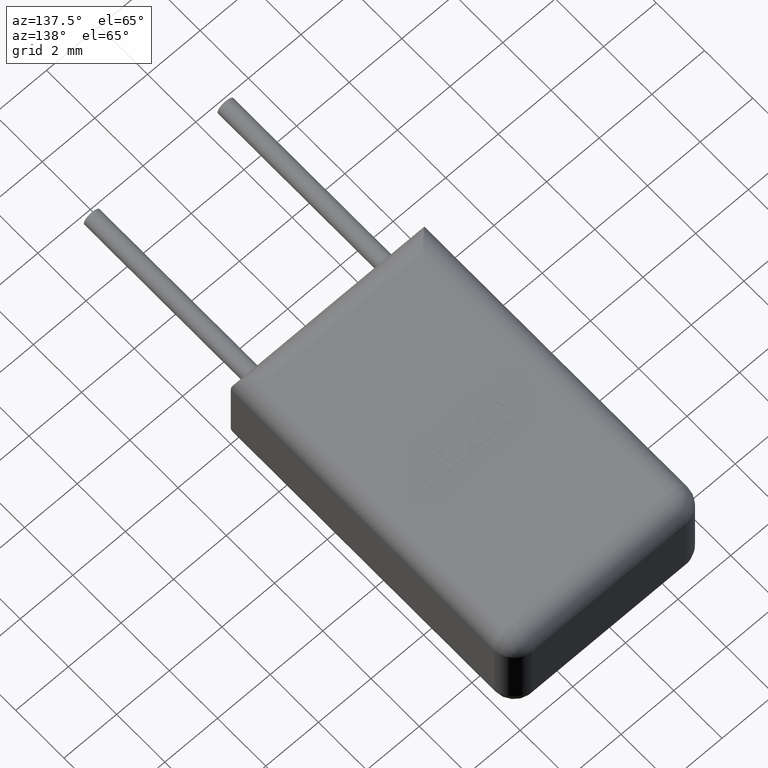
[diagram: clean part render]
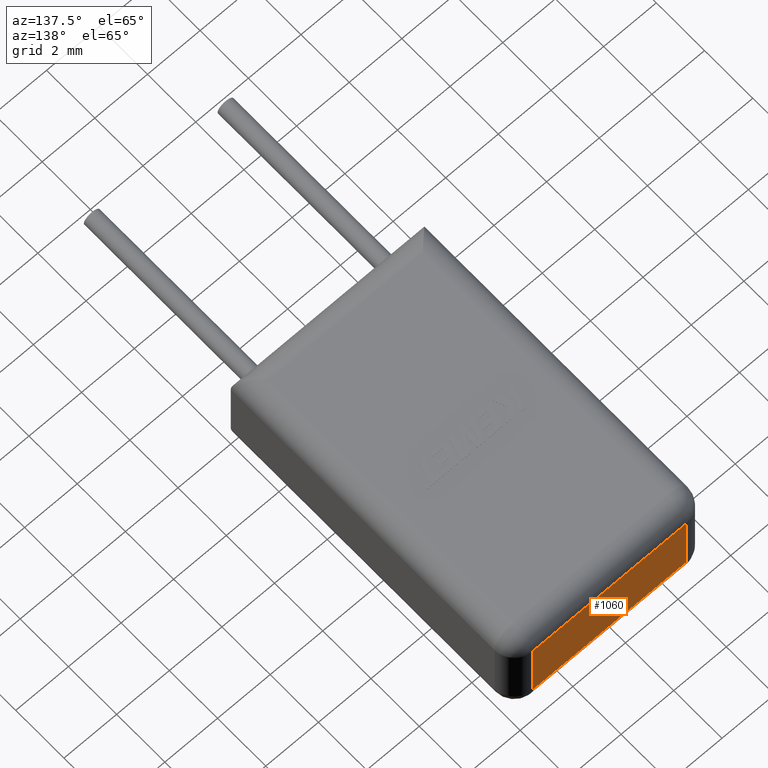
[diagram: same view with one face highlighted and labeled with its STEP entity id]
A machine part, auxiliary view. The second image highlights one B-rep face of the part: STEP entity #1060.
In plain terms, the highlighted planar face has unit normal (0, -1, 0).
Its self-contained STEP definition (entity closure, byte-faithful):
#38 = DIRECTION ( 'NONE',  ( 0.0000000000000000000, -0.0000000000000000000, -1.000000000000000000 ) ) ;
#115 = DIRECTION ( 'NONE',  ( -0.0000000000000000000, -0.0000000000000000000, 1.000000000000000000 ) ) ;
#235 = ORIENTED_EDGE ( 'NONE', *, *, #2814, .T. ) ;
#434 = VECTOR ( 'NONE', #115, 1000.000000000000000 ) ;
#485 = DIRECTION ( 'NONE',  ( 1.000000000000000000, -0.0000000000000000000, -0.0000000000000000000 ) ) ;
#599 = EDGE_LOOP ( 'NONE', ( #755, #3073, #1513, #235 ) ) ;
#755 = ORIENTED_EDGE ( 'NONE', *, *, #1064, .T. ) ;
#981 = CARTESIAN_POINT ( 'NONE',  ( -6.610000000000000300, 11.67999999999999800, 3.320000000000000700 ) ) ;
#1041 = CARTESIAN_POINT ( 'NONE',  ( -7.360000000000000300, 11.67999999999999800, 3.320000000000000700 ) ) ;
#1060 = ADVANCED_FACE ( 'NONE', ( #3355 ), #2122, .F. ) ;
#1064 = EDGE_CURVE ( 'NONE', #2041, #1360, #3570, .T. ) ;
#1203 = DIRECTION ( 'NONE',  ( 0.0000000000000000000, -1.000000000000000000, 0.0000000000000000000 ) ) ;
#1360 = VERTEX_POINT ( 'NONE', #981 ) ;
#1483 = VECTOR ( 'NONE', #2668, 1000.000000000000000 ) ;
#1513 = ORIENTED_EDGE ( 'NONE', *, *, #3135, .T. ) ;
#1526 = CARTESIAN_POINT ( 'NONE',  ( -6.610000000000000300, 11.67999999999999800, 0.7499999999999997800 ) ) ;
#1967 = CARTESIAN_POINT ( 'NONE',  ( -7.360000000000000300, 11.67999999999999800, 0.7499999999999997800 ) ) ;
#2041 = VERTEX_POINT ( 'NONE', #1526 ) ;
#2122 = PLANE ( 'NONE',  #2811 ) ;
#2215 = VECTOR ( 'NONE', #2275, 1000.000000000000000 ) ;
#2241 = EDGE_CURVE ( 'NONE', #1360, #3196, #2454, .T. ) ;
#2253 = LINE ( 'NONE', #2381, #1483 ) ;
#2275 = DIRECTION ( 'NONE',  ( -1.000000000000000000, 0.0000000000000000000, 0.0000000000000000000 ) ) ;
#2381 = CARTESIAN_POINT ( 'NONE',  ( -0.7499999999999997800, 11.67999999999999800, 4.070000000000000300 ) ) ;
#2454 = LINE ( 'NONE', #1041, #3323 ) ;
#2465 = CARTESIAN_POINT ( 'NONE',  ( -0.7499999999999997800, 11.67999999999999800, 0.7499999999999997800 ) ) ;
#2668 = DIRECTION ( 'NONE',  ( 0.0000000000000000000, 0.0000000000000000000, -1.000000000000000000 ) ) ;
#2799 = LINE ( 'NONE', #1967, #2215 ) ;
#2811 = AXIS2_PLACEMENT_3D ( 'NONE', #2919, #1203, #38 ) ;
#2814 = EDGE_CURVE ( 'NONE', #3305, #2041, #2799, .T. ) ;
#2919 = CARTESIAN_POINT ( 'NONE',  ( -7.360000000000000300, 11.67999999999999800, 4.070000000000000300 ) ) ;
#3030 = CARTESIAN_POINT ( 'NONE',  ( -6.610000000000000300, 11.67999999999999800, 4.070000000000000300 ) ) ;
#3073 = ORIENTED_EDGE ( 'NONE', *, *, #2241, .T. ) ;
#3135 = EDGE_CURVE ( 'NONE', #3196, #3305, #2253, .T. ) ;
#3196 = VERTEX_POINT ( 'NONE', #3481 ) ;
#3305 = VERTEX_POINT ( 'NONE', #2465 ) ;
#3323 = VECTOR ( 'NONE', #485, 1000.000000000000000 ) ;
#3355 = FACE_OUTER_BOUND ( 'NONE', #599, .T. ) ;
#3481 = CARTESIAN_POINT ( 'NONE',  ( -0.7499999999999997800, 11.67999999999999800, 3.320000000000000700 ) ) ;
#3570 = LINE ( 'NONE', #3030, #434 ) ;